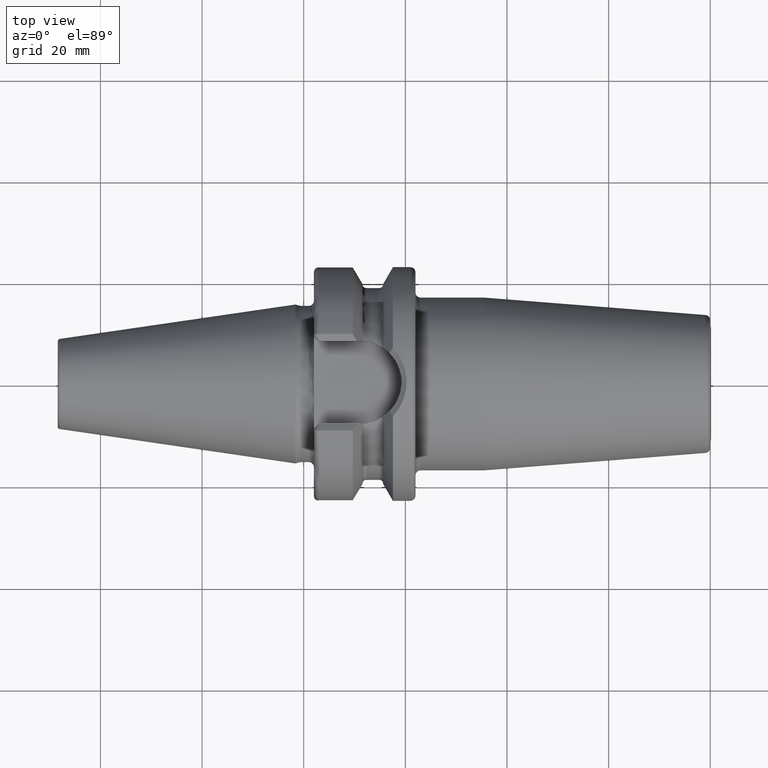
[diagram: clean part render]
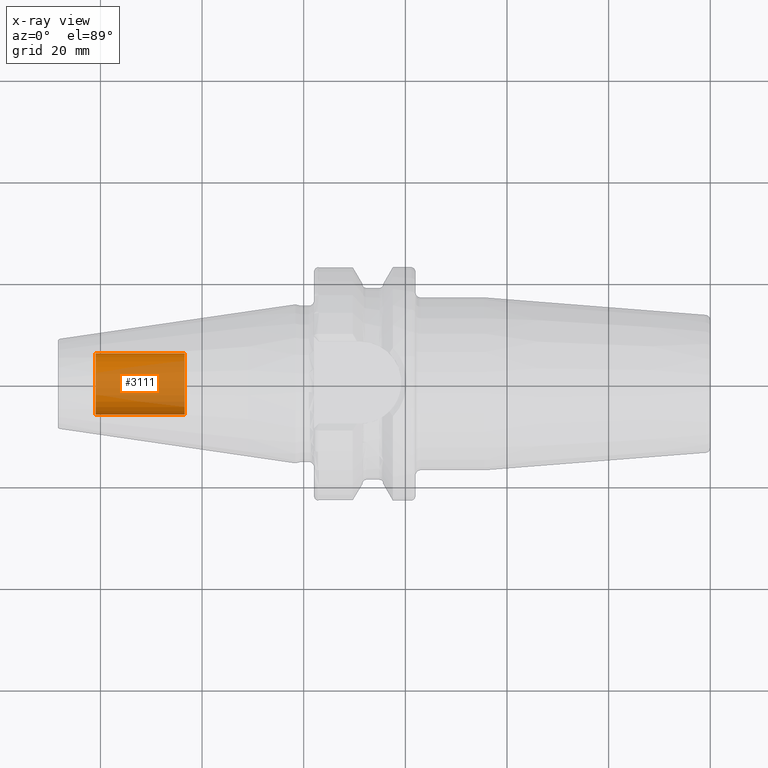
[diagram: x-ray — body ghosted, one internal face saturated and labeled with its STEP entity id]
A machine part, top view, then the same camera in x-ray: the body is ghosted and one INTERNAL B-rep face — a face not visible from any outside direction — is saturated and labeled: STEP entity #3111.
In plain terms, the highlighted cylindrical surface (edge-blend (fillet) strip) has radius 6.0027 mm, axis along (1, 0, 0).
Its self-contained STEP definition (entity closure, byte-faithful):
#3046=CARTESIAN_POINT('',(-4.095E1,0.E0,0.E0));
#3047=DIRECTION('',(-1.E0,0.E0,0.E0));
#3048=DIRECTION('',(0.E0,1.E0,0.E0));
#3049=AXIS2_PLACEMENT_3D('',#3046,#3047,#3048);
#3051=DIRECTION('',(1.E0,0.E0,0.E0));
#3052=VECTOR('',#3051,1.755E1);
#3053=CARTESIAN_POINT('',(-4.095E1,-6.00275E0,0.E0));
#3054=LINE('',#3053,#3052);
#3060=DIRECTION('',(1.E0,0.E0,0.E0));
#3061=VECTOR('',#3060,1.755E1);
#3062=CARTESIAN_POINT('',(-4.095E1,6.00275E0,0.E0));
#3063=LINE('',#3062,#3061);
#3069=CARTESIAN_POINT('',(-2.34E1,0.E0,0.E0));
#3070=DIRECTION('',(1.E0,0.E0,0.E0));
#3071=DIRECTION('',(0.E0,-1.E0,0.E0));
#3072=AXIS2_PLACEMENT_3D('',#3069,#3070,#3071);
#3084=CARTESIAN_POINT('',(-4.095E1,6.00275E0,0.E0));
#3085=CARTESIAN_POINT('',(-4.095E1,-6.00275E0,0.E0));
#3086=VERTEX_POINT('',#3084);
#3087=VERTEX_POINT('',#3085);
#3088=CARTESIAN_POINT('',(-2.34E1,6.00275E0,0.E0));
#3089=CARTESIAN_POINT('',(-2.34E1,-6.00275E0,0.E0));
#3090=VERTEX_POINT('',#3088);
#3091=VERTEX_POINT('',#3089);
#3096=CARTESIAN_POINT('',(-4.095E1,0.E0,0.E0));
#3097=DIRECTION('',(1.E0,0.E0,0.E0));
#3098=DIRECTION('',(0.E0,1.E0,0.E0));
#3099=AXIS2_PLACEMENT_3D('',#3096,#3097,#3098);
#3100=CYLINDRICAL_SURFACE('',#3099,6.00275E0);
#3102=ORIENTED_EDGE('',*,*,#3101,.T.);
#3104=ORIENTED_EDGE('',*,*,#3103,.T.);
#3106=ORIENTED_EDGE('',*,*,#3105,.T.);
#3108=ORIENTED_EDGE('',*,*,#3107,.F.);
#3109=EDGE_LOOP('',(#3102,#3104,#3106,#3108));
#3110=FACE_OUTER_BOUND('',#3109,.F.);
#3111=ADVANCED_FACE('',(#3110),#3100,.T.);
#3050=CIRCLE('',#3049,6.00275E0);
#3073=CIRCLE('',#3072,6.00275E0);
#3101=EDGE_CURVE('',#3086,#3087,#3050,.T.);
#3103=EDGE_CURVE('',#3087,#3091,#3054,.T.);
#3105=EDGE_CURVE('',#3091,#3090,#3073,.T.);
#3107=EDGE_CURVE('',#3086,#3090,#3063,.T.);